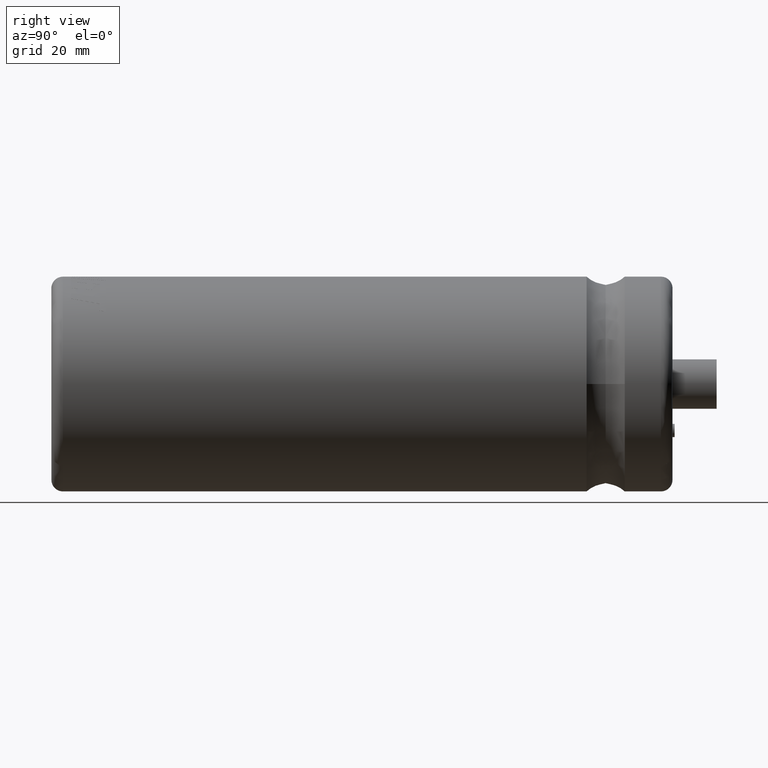
[diagram: clean part render]
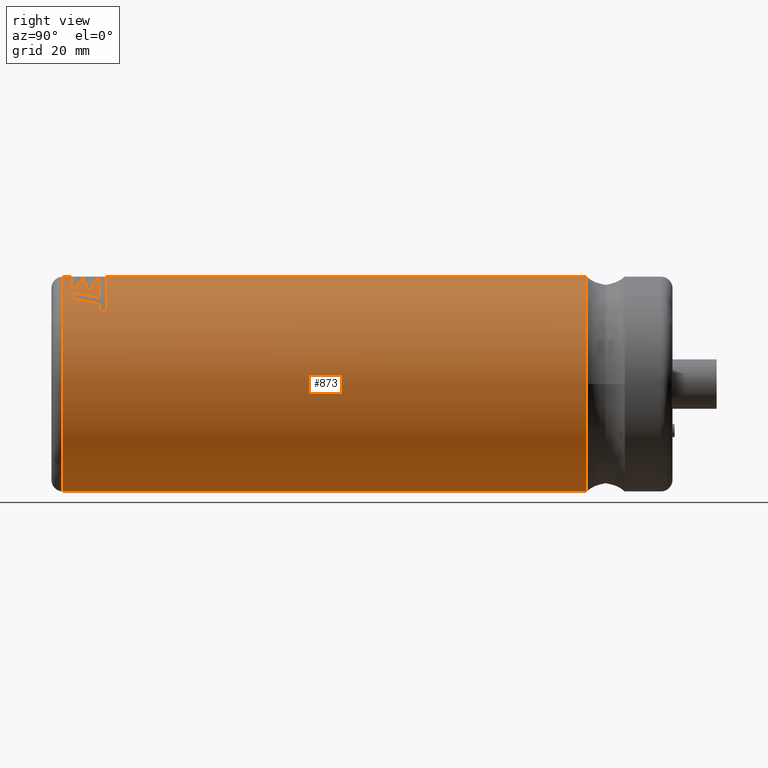
[diagram: same view with one face highlighted and labeled with its STEP entity id]
A machine part, right view. The second image highlights one B-rep face of the part: STEP entity #873.
In plain terms, the highlighted cylindrical surface (partial cylindrical patch) has radius 18.5 mm, axis along (-0, -1, -0).
Its self-contained STEP definition (entity closure, byte-faithful):
#26 = ORIENTED_EDGE ( 'NONE', *, *, #3286, .F. ) ;
#31 = EDGE_CURVE ( 'NONE', #1045, #486, #2114, .T. ) ;
#41 = CARTESIAN_POINT ( 'NONE',  ( 6.642908973838218300, 7.188493659439910000, 17.26620283575110900 ) ) ;
#52 = CARTESIAN_POINT ( 'NONE',  ( 2.265596578422603400E-015, 107.0000000000000000, 18.50000000000000000 ) ) ;
#71 = EDGE_CURVE ( 'NONE', #2595, #3135, #2828, .T. ) ;
#77 = ORIENTED_EDGE ( 'NONE', *, *, #4178, .F. ) ;
#82 = ORIENTED_EDGE ( 'NONE', *, *, #3617, .F. ) ;
#86 = EDGE_CURVE ( 'NONE', #3030, #2520, #1499, .T. ) ;
#91 = DIRECTION ( 'NONE',  ( -0.0000000000000000000, -1.000000000000000000, -0.0000000000000000000 ) ) ;
#97 = CARTESIAN_POINT ( 'NONE',  ( 5.093318656815754700, 7.448847891787712800, 17.79450498151392100 ) ) ;
#190 = CARTESIAN_POINT ( 'NONE',  ( 13.56254993944359900, 8.686349197350265800, 12.58251793018751400 ) ) ;
#193 = EDGE_CURVE ( 'NONE', #981, #320, #523, .T. ) ;
#203 = CARTESIAN_POINT ( 'NONE',  ( 8.264186464749878200, 3.416545826402384000, 16.55153231806182000 ) ) ;
#215 = CARTESIAN_POINT ( 'NONE',  ( 9.428821525695175500, 8.305707318086968300, 15.91688803241975400 ) ) ;
#237 = EDGE_LOOP ( 'NONE', ( #2224, #2379, #4119, #82, #755, #4237, #2178, #3347, #1982, #463, #4055, #3331, #3498, #1478, #2546 ) ) ;
#274 = EDGE_LOOP ( 'NONE', ( #3549, #2434, #849, #2321, #4102, #343, #26, #326, #2724, #2745, #3765, #3849, #77, #1251, #1781, #3605, #2445, #2279 ) ) ;
#290 = B_SPLINE_CURVE_WITH_KNOTS ( 'NONE', 3,
 ( #2896, #1942, #1131, #3400 ),
 .UNSPECIFIED., .F., .F.,
 ( 4, 4 ),
 ( 0.0000000000000000000, 1.000000000000000000 ),
 .UNSPECIFIED. ) ;
#302 = CIRCLE ( 'NONE', #1219, 18.50000000000000000 ) ;
#315 = B_SPLINE_CURVE_WITH_KNOTS ( 'NONE', 3,
 ( #2270, #1651, #977, #2924 ),
 .UNSPECIFIED., .F., .F.,
 ( 4, 4 ),
 ( 0.0000000000000000000, 1.000000000000000000 ),
 .UNSPECIFIED. ) ;
#320 = VERTEX_POINT ( 'NONE', #1567 ) ;
#326 = ORIENTED_EDGE ( 'NONE', *, *, #3949, .T. ) ;
#329 = EDGE_CURVE ( 'NONE', #486, #1411, #3685, .T. ) ;
#343 = ORIENTED_EDGE ( 'NONE', *, *, #3138, .F. ) ;
#358 = CARTESIAN_POINT ( 'NONE',  ( 13.48595942830609600, 8.297024056410556600, 12.66407905447853100 ) ) ;
#363 = EDGE_CURVE ( 'NONE', #2677, #2097, #1881, .T. ) ;
#414 = VERTEX_POINT ( 'NONE', #670 ) ;
#463 = ORIENTED_EDGE ( 'NONE', *, *, #3781, .F. ) ;
#486 = VERTEX_POINT ( 'NONE', #2935 ) ;
#523 = B_SPLINE_CURVE_WITH_KNOTS ( 'NONE', 3,
 ( #215, #2801, #2500, #3761 ),
 .UNSPECIFIED., .F., .F.,
 ( 4, 4 ),
 ( 0.0000000000000000000, 1.000000000000000000 ),
 .UNSPECIFIED. ) ;
#525 = CARTESIAN_POINT ( 'NONE',  ( 2.349229893947955900, 9.464999478932936600, 18.35023484605527600 ) ) ;
#541 = AXIS2_PLACEMENT_3D ( 'NONE', #1797, #2116, #1438 ) ;
#601 = B_SPLINE_CURVE_WITH_KNOTS ( 'NONE', 3,
 ( #2486, #4100, #3464, #3763 ),
 .UNSPECIFIED., .F., .F.,
 ( 4, 4 ),
 ( 0.0000000000000000000, 1.000000000000000000 ),
 .UNSPECIFIED. ) ;
#608 = AXIS2_PLACEMENT_3D ( 'NONE', #4105, #4121, #3793 ) ;
#611 = CIRCLE ( 'NONE', #1068, 18.50000000000000000 ) ;
#633 = CARTESIAN_POINT ( 'NONE',  ( 0.0000000000000000000, 107.0000000000000000, -18.50000000000000000 ) ) ;
#636 = EDGE_CURVE ( 'NONE', #3500, #895, #2309, .T. ) ;
#650 = VERTEX_POINT ( 'NONE', #3383 ) ;
#664 = EDGE_CURVE ( 'NONE', #414, #2677, #2733, .T. ) ;
#670 = CARTESIAN_POINT ( 'NONE',  ( 11.21765577625601500, 3.416545826402384000, 14.71102304006862800 ) ) ;
#679 = CARTESIAN_POINT ( 'NONE',  ( 2.349229893947955900, 9.464999478932936600, 18.35023484605527600 ) ) ;
#694 = VERTEX_POINT ( 'NONE', #525 ) ;
#738 = CARTESIAN_POINT ( 'NONE',  ( 0.4450323971191124700, 9.464999478932936600, 18.49464641904554800 ) ) ;
#746 = CARTESIAN_POINT ( 'NONE',  ( 0.2124644276210779500, 5.143906476470602800, 18.49877992914655800 ) ) ;
#747 = DIRECTION ( 'NONE',  ( -0.0000000000000000000, -1.000000000000000000, -0.0000000000000000000 ) ) ;
#755 = ORIENTED_EDGE ( 'NONE', *, *, #2506, .F. ) ;
#765 = EDGE_CURVE ( 'NONE', #650, #3357, #1323, .T. ) ;
#777 = CARTESIAN_POINT ( 'NONE',  ( 6.642908973838218300, 7.188493659439910000, 17.26620283575110900 ) ) ;
#806 = AXIS2_PLACEMENT_3D ( 'NONE', #1718, #2642, #3293 ) ;
#817 = CARTESIAN_POINT ( 'NONE',  ( 2.331809711725460600, 7.023679391972404300, 18.37713762924340000 ) ) ;
#821 = CARTESIAN_POINT ( 'NONE',  ( 12.29986521933000900, 8.297155524575883200, 13.81894770184459300 ) ) ;
#829 = CIRCLE ( 'NONE', #2205, 18.50000000000000000 ) ;
#840 = CARTESIAN_POINT ( 'NONE',  ( 2.448739033994446700E-016, 92.19120000000002300, 0.0000000000000000000 ) ) ;
#849 = ORIENTED_EDGE ( 'NONE', *, *, #193, .F. ) ;
#873 = ADVANCED_FACE ( 'NONE', ( #2917, #2602 ), #2707, .T. ) ;
#875 = DIRECTION ( 'NONE',  ( -0.0000000000000000000, -1.000000000000000000, -0.0000000000000000000 ) ) ;
#895 = VERTEX_POINT ( 'NONE', #3528 ) ;
#897 = VERTEX_POINT ( 'NONE', #3852 ) ;
#912 = B_SPLINE_CURVE_WITH_KNOTS ( 'NONE', 3,
 ( #1434, #3444, #3737, #2128 ),
 .UNSPECIFIED., .F., .F.,
 ( 4, 4 ),
 ( 0.0000000000000000000, 1.000000000000000000 ),
 .UNSPECIFIED. ) ;
#924 = CARTESIAN_POINT ( 'NONE',  ( 13.71349870212415900, 9.464999478932950800, 12.41732472583523300 ) ) ;
#940 = CARTESIAN_POINT ( 'NONE',  ( 3.268943527968920700, 8.827256375600653000, 18.20889914879397900 ) ) ;
#949 = VERTEX_POINT ( 'NONE', #2675 ) ;
#964 = EDGE_CURVE ( 'NONE', #4081, #3500, #3155, .T. ) ;
#977 = CARTESIAN_POINT ( 'NONE',  ( 2.245545814001399100, 5.220116219276920200, 18.37051364121722200 ) ) ;
#981 = VERTEX_POINT ( 'NONE', #3984 ) ;
#1004 = CARTESIAN_POINT ( 'NONE',  ( 0.2124644276210779500, 5.143906476470602800, 18.49877992914655800 ) ) ;
#1005 = CIRCLE ( 'NONE', #1406, 18.49999999999999600 ) ;
#1021 = CARTESIAN_POINT ( 'NONE',  ( 0.4450323971191124700, 9.464999478932936600, 18.49464641904554800 ) ) ;
#1028 = CARTESIAN_POINT ( 'NONE',  ( 0.9267916661902549900, 6.584272376631336200, 18.49057565143429500 ) ) ;
#1029 = CARTESIAN_POINT ( 'NONE',  ( 3.966307759882792700, 3.416545826402384000, 18.06982021919126800 ) ) ;
#1035 = CARTESIAN_POINT ( 'NONE',  ( 0.0000000000000000000, 3.416545826402370300, 0.0000000000000000000 ) ) ;
#1045 = VERTEX_POINT ( 'NONE', #3408 ) ;
#1053 = EDGE_CURVE ( 'NONE', #1791, #4081, #1005, .T. ) ;
#1061 = EDGE_CURVE ( 'NONE', #4190, #895, #2556, .T. ) ;
#1067 = CARTESIAN_POINT ( 'NONE',  ( 6.209842713198642400, 5.569525739501413500, 17.42722903377453400 ) ) ;
#1068 = AXIS2_PLACEMENT_3D ( 'NONE', #2198, #2548, #1574 ) ;
#1129 = CARTESIAN_POINT ( 'NONE',  ( 6.947379894471674300, 8.313505082480674000, 17.14595907500920900 ) ) ;
#1131 = CARTESIAN_POINT ( 'NONE',  ( 8.633900912638969400, 8.308306611759327600, 16.38778187626265000 ) ) ;
#1159 = CARTESIAN_POINT ( 'NONE',  ( 0.0000000000000000000, 3.416545826402384000, 0.0000000000000000000 ) ) ;
#1166 = DIRECTION ( 'NONE',  ( 0.0000000000000000000, 1.000000000000000000, 0.0000000000000000000 ) ) ;
#1182 = VERTEX_POINT ( 'NONE', #2614 ) ;
#1212 = DIRECTION ( 'NONE',  ( 1.000000000000000000, 0.0000000000000000000, 0.0000000000000000000 ) ) ;
#1217 = DIRECTION ( 'NONE',  ( -0.0000000000000000000, -1.000000000000000000, -0.0000000000000000000 ) ) ;
#1219 = AXIS2_PLACEMENT_3D ( 'NONE', #2457, #2148, #1540 ) ;
#1236 = EDGE_CURVE ( 'NONE', #1646, #2618, #2704, .T. ) ;
#1251 = ORIENTED_EDGE ( 'NONE', *, *, #3626, .F. ) ;
#1281 = CARTESIAN_POINT ( 'NONE',  ( 2.265596578422603400E-015, 92.19120000000002300, 18.49999999999999600 ) ) ;
#1282 = B_SPLINE_CURVE_WITH_KNOTS ( 'NONE', 3,
 ( #3629, #2668, #1067, #4015 ),
 .UNSPECIFIED., .F., .F.,
 ( 4, 4 ),
 ( 0.0000000000000000000, 1.000000000000000000 ),
 .UNSPECIFIED. ) ;
#1301 = CARTESIAN_POINT ( 'NONE',  ( 3.823063599323596900, 5.432697412589837100, 18.10994722882333000 ) ) ;
#1317 = CARTESIAN_POINT ( 'NONE',  ( 18.49999999999999600, 92.19120000000002300, 0.0000000000000000000 ) ) ;
#1323 = CIRCLE ( 'NONE', #608, 18.50000000000000000 ) ;
#1336 = VERTEX_POINT ( 'NONE', #3740 ) ;
#1363 = CARTESIAN_POINT ( 'NONE',  ( 0.0000000000000000000, 9.464999478932936600, 0.0000000000000000000 ) ) ;
#1386 = DIRECTION ( 'NONE',  ( -0.0000000000000000000, -1.000000000000000000, -0.0000000000000000000 ) ) ;
#1406 = AXIS2_PLACEMENT_3D ( 'NONE', #840, #2852, #1212 ) ;
#1407 = EDGE_CURVE ( 'NONE', #414, #2034, #2281, .T. ) ;
#1411 = VERTEX_POINT ( 'NONE', #2485 ) ;
#1421 = DIRECTION ( 'NONE',  ( -0.0000000000000000000, -1.000000000000000000, -0.0000000000000000000 ) ) ;
#1426 = CARTESIAN_POINT ( 'NONE',  ( 1.381682008514034700, 5.220122810030616700, 18.47288496156459900 ) ) ;
#1434 = CARTESIAN_POINT ( 'NONE',  ( 8.264186464749878200, 3.416545826402384000, 16.55153231806182000 ) ) ;
#1438 = DIRECTION ( 'NONE',  ( 0.2143950140477185200, 0.0000000000000000000, 0.9767470388752036400 ) ) ;
#1476 = CIRCLE ( 'NONE', #3415, 18.50000000000000000 ) ;
#1478 = ORIENTED_EDGE ( 'NONE', *, *, #1633, .F. ) ;
#1487 = DIRECTION ( 'NONE',  ( 0.5297798474804629200, 0.0000000000000000000, 0.8481351974794924000 ) ) ;
#1492 = CARTESIAN_POINT ( 'NONE',  ( 9.714178162388904500, 9.464999478932950800, 15.74435589757061000 ) ) ;
#1493 = CARTESIAN_POINT ( 'NONE',  ( 11.95057568479881000, 6.670285499197266400, 14.12984070831301000 ) ) ;
#1499 = CIRCLE ( 'NONE', #3167, 18.50000000000000000 ) ;
#1504 = CARTESIAN_POINT ( 'NONE',  ( 13.48595942830609600, 8.297024056410556600, 12.66407905447853100 ) ) ;
#1540 = DIRECTION ( 'NONE',  ( 0.5250907114804812500, 0.0000000000000000000, 0.8510462647335467200 ) ) ;
#1546 = CARTESIAN_POINT ( 'NONE',  ( 10.58494358374994500, 6.670285498994769700, 15.17984693985343400 ) ) ;
#1567 = CARTESIAN_POINT ( 'NONE',  ( 10.96173474450690000, 8.297155524590884600, 14.90269678249779700 ) ) ;
#1573 = DIRECTION ( 'NONE',  ( -0.0000000000000000000, -1.000000000000000000, -0.0000000000000000000 ) ) ;
#1574 = DIRECTION ( 'NONE',  ( 0.1269853996728622600, 0.0000000000000000000, 0.9919045862732581700 ) ) ;
#1633 = EDGE_CURVE ( 'NONE', #1791, #1182, #3847, .T. ) ;
#1646 = VERTEX_POINT ( 'NONE', #41 ) ;
#1651 = CARTESIAN_POINT ( 'NONE',  ( 2.759167089100059000, 7.023685982726100000, 18.30041650945011300 ) ) ;
#1718 = CARTESIAN_POINT ( 'NONE',  ( 0.0000000000000000000, 7.188493659439910000, 0.0000000000000000000 ) ) ;
#1736 = CIRCLE ( 'NONE', #2793, 18.50000000000000000 ) ;
#1759 = CARTESIAN_POINT ( 'NONE',  ( 5.645572098296751700, 9.464999478932950800, 17.61753432472697500 ) ) ;
#1781 = ORIENTED_EDGE ( 'NONE', *, *, #3341, .F. ) ;
#1791 = VERTEX_POINT ( 'NONE', #3747 ) ;
#1797 = CARTESIAN_POINT ( 'NONE',  ( 0.0000000000000000000, 3.416545826402384000, 0.0000000000000000000 ) ) ;
#1818 = CARTESIAN_POINT ( 'NONE',  ( 13.71349870212415900, 9.464999478932950800, 12.41732472583523300 ) ) ;
#1838 = EDGE_CURVE ( 'NONE', #2595, #650, #912, .T. ) ;
#1851 = B_SPLINE_CURVE_WITH_KNOTS ( 'NONE', 3,
 ( #1759, #97, #3011, #1029 ),
 .UNSPECIFIED., .F., .F.,
 ( 4, 4 ),
 ( 0.0000000000000000000, 1.000000000000000000 ),
 .UNSPECIFIED. ) ;
#1879 = VERTEX_POINT ( 'NONE', #2140 ) ;
#1881 = B_SPLINE_CURVE_WITH_KNOTS ( 'NONE', 3,
 ( #3939, #3268, #3604, #358 ),
 .UNSPECIFIED., .F., .F.,
 ( 4, 4 ),
 ( 0.0000000000000000000, 1.000000000000000000 ),
 .UNSPECIFIED. ) ;
#1889 = EDGE_CURVE ( 'NONE', #1411, #1182, #829, .T. ) ;
#1924 = VERTEX_POINT ( 'NONE', #924 ) ;
#1937 = CARTESIAN_POINT ( 'NONE',  ( 3.252433556034344700, 3.416545826402384000, 18.21185536851151500 ) ) ;
#1942 = CARTESIAN_POINT ( 'NONE',  ( 7.803682726506505000, 8.310905788808302200, 16.79899329416065600 ) ) ;
#1963 = EDGE_CURVE ( 'NONE', #2618, #981, #290, .T. ) ;
#1982 = ORIENTED_EDGE ( 'NONE', *, *, #3032, .F. ) ;
#2012 = CARTESIAN_POINT ( 'NONE',  ( 2.448739033994446700E-016, 92.19120000000002300, 0.0000000000000000000 ) ) ;
#2022 = VERTEX_POINT ( 'NONE', #1492 ) ;
#2034 = VERTEX_POINT ( 'NONE', #3214 ) ;
#2050 = DIRECTION ( 'NONE',  ( 1.000000000000000000, 0.0000000000000000000, 0.0000000000000000000 ) ) ;
#2064 = CARTESIAN_POINT ( 'NONE',  ( 0.3675194238904064800, 8.024635144775635000, 18.49651159578384400 ) ) ;
#2076 = CARTESIAN_POINT ( 'NONE',  ( 0.0000000000000000000, 9.464999478932950800, 0.0000000000000000000 ) ) ;
#2097 = VERTEX_POINT ( 'NONE', #2985 ) ;
#2114 = CIRCLE ( 'NONE', #3770, 18.49999999999999600 ) ;
#2116 = DIRECTION ( 'NONE',  ( -0.0000000000000000000, -1.000000000000000000, -0.0000000000000000000 ) ) ;
#2128 = CARTESIAN_POINT ( 'NONE',  ( 8.555073215558289600, 4.567488494231164400, 16.40307051367020800 ) ) ;
#2140 = CARTESIAN_POINT ( 'NONE',  ( 8.992243389938009200, 7.188493659439910000, 16.16754646865492600 ) ) ;
#2148 = DIRECTION ( 'NONE',  ( -0.0000000000000000000, -1.000000000000000000, -0.0000000000000000000 ) ) ;
#2178 = ORIENTED_EDGE ( 'NONE', *, *, #2395, .F. ) ;
#2179 = CARTESIAN_POINT ( 'NONE',  ( 11.58949352403600100, 5.043415851780992800, 14.42748410142016300 ) ) ;
#2183 = EDGE_CURVE ( 'NONE', #320, #2034, #2341, .T. ) ;
#2198 = CARTESIAN_POINT ( 'NONE',  ( 0.0000000000000000000, 9.464999478932936600, 0.0000000000000000000 ) ) ;
#2204 = AXIS2_PLACEMENT_3D ( 'NONE', #1159, #875, #1487 ) ;
#2205 = AXIS2_PLACEMENT_3D ( 'NONE', #3783, #1166, #2274 ) ;
#2215 = CARTESIAN_POINT ( 'NONE',  ( 0.0000000000000000000, 6.070544362640109900, 0.0000000000000000000 ) ) ;
#2224 = ORIENTED_EDGE ( 'NONE', *, *, #964, .T. ) ;
#2270 = CARTESIAN_POINT ( 'NONE',  ( 3.268943527968920700, 8.827256375600653000, 18.20889914879397900 ) ) ;
#2274 = DIRECTION ( 'NONE',  ( 0.0000000000000000000, 0.0000000000000000000, 1.000000000000000000 ) ) ;
#2278 = DIRECTION ( 'NONE',  ( -0.0000000000000000000, -1.000000000000000000, -0.0000000000000000000 ) ) ;
#2279 = ORIENTED_EDGE ( 'NONE', *, *, #664, .F. ) ;
#2281 = CIRCLE ( 'NONE', #2204, 18.49999999999999600 ) ;
#2299 = VERTEX_POINT ( 'NONE', #940 ) ;
#2309 = LINE ( 'NONE', #52, #3625 ) ;
#2313 = CARTESIAN_POINT ( 'NONE',  ( 4.388899453175394400, 7.448847892745491500, 17.98120033549361100 ) ) ;
#2317 = AXIS2_PLACEMENT_3D ( 'NONE', #3516, #1573, #4181 ) ;
#2321 = ORIENTED_EDGE ( 'NONE', *, *, #1963, .F. ) ;
#2341 = B_SPLINE_CURVE_WITH_KNOTS ( 'NONE', 3,
 ( #3519, #1546, #3169, #2536 ),
 .UNSPECIFIED., .F., .F.,
 ( 4, 4 ),
 ( 0.0000000000000000000, 1.000000000000000000 ),
 .UNSPECIFIED. ) ;
#2344 = AXIS2_PLACEMENT_3D ( 'NONE', #2012, #2346, #2050 ) ;
#2346 = DIRECTION ( 'NONE',  ( -2.656152684848929400E-018, -1.000000000000000000, -0.0000000000000000000 ) ) ;
#2379 = ORIENTED_EDGE ( 'NONE', *, *, #636, .T. ) ;
#2395 = EDGE_CURVE ( 'NONE', #3030, #3385, #3163, .T. ) ;
#2434 = ORIENTED_EDGE ( 'NONE', *, *, #2183, .F. ) ;
#2445 = ORIENTED_EDGE ( 'NONE', *, *, #363, .F. ) ;
#2455 = CARTESIAN_POINT ( 'NONE',  ( 6.846246856260068900, 7.938501274712248100, 17.18693722229536600 ) ) ;
#2457 = CARTESIAN_POINT ( 'NONE',  ( 0.0000000000000000000, 9.464999478932950800, 0.0000000000000000000 ) ) ;
#2475 = CARTESIAN_POINT ( 'NONE',  ( 12.29986521933000900, 8.297155524575883200, 13.81894770184459300 ) ) ;
#2485 = CARTESIAN_POINT ( 'NONE',  ( 0.0000000000000000000, 2.000000000000001800, 18.50000000000000400 ) ) ;
#2486 = CARTESIAN_POINT ( 'NONE',  ( 8.711806624040868000, 6.070544362640109900, 16.32036841941129900 ) ) ;
#2500 = CARTESIAN_POINT ( 'NONE',  ( 10.46798381731099200, 8.300006130840861500, 15.26587713654836900 ) ) ;
#2506 = EDGE_CURVE ( 'NONE', #694, #4113, #2648, .T. ) ;
#2520 = VERTEX_POINT ( 'NONE', #3963 ) ;
#2536 = CARTESIAN_POINT ( 'NONE',  ( 9.800927178388562300, 3.416545826402384000, 15.69050115337060600 ) ) ;
#2546 = ORIENTED_EDGE ( 'NONE', *, *, #1053, .T. ) ;
#2548 = DIRECTION ( 'NONE',  ( -0.0000000000000000000, -1.000000000000000000, -0.0000000000000000000 ) ) ;
#2552 = DIRECTION ( 'NONE',  ( 0.3429298346774529200, 0.0000000000000000000, 0.9393610213800095400 ) ) ;
#2556 = CIRCLE ( 'NONE', #3210, 18.49999999999999600 ) ;
#2595 = VERTEX_POINT ( 'NONE', #203 ) ;
#2602 = FACE_OUTER_BOUND ( 'NONE', #237, .T. ) ;
#2614 = CARTESIAN_POINT ( 'NONE',  ( 2.265596578422603800E-015, 2.000000000000001800, -18.50000000000000400 ) ) ;
#2618 = VERTEX_POINT ( 'NONE', #1129 ) ;
#2620 = CARTESIAN_POINT ( 'NONE',  ( 0.2124644276210779500, 5.143906476470602800, 18.49877992914655800 ) ) ;
#2630 = VECTOR ( 'NONE', #3954, 1000.000000000000000 ) ;
#2638 = EDGE_CURVE ( 'NONE', #2097, #1924, #3845, .T. ) ;
#2642 = DIRECTION ( 'NONE',  ( -0.0000000000000000000, -1.000000000000000000, -0.0000000000000000000 ) ) ;
#2648 = B_SPLINE_CURVE_WITH_KNOTS ( 'NONE', 3,
 ( #679, #3280, #1028, #1004 ),
 .UNSPECIFIED., .F., .F.,
 ( 4, 4 ),
 ( 0.0000000000000000000, 1.000000000000000000 ),
 .UNSPECIFIED. ) ;
#2663 = CARTESIAN_POINT ( 'NONE',  ( 0.2899947248175178700, 6.584270810627916900, 18.49788946878754100 ) ) ;
#2668 = CARTESIAN_POINT ( 'NONE',  ( 6.074914614252242600, 5.068507117369859000, 17.47472090615025300 ) ) ;
#2675 = CARTESIAN_POINT ( 'NONE',  ( 8.711806624040868000, 6.070544362640109900, 16.32036841941129900 ) ) ;
#2677 = VERTEX_POINT ( 'NONE', #821 ) ;
#2704 = B_SPLINE_CURVE_WITH_KNOTS ( 'NONE', 3,
 ( #777, #4070, #2455, #4028 ),
 .UNSPECIFIED., .F., .F.,
 ( 4, 4 ),
 ( 0.0000000000000000000, 1.000000000000000000 ),
 .UNSPECIFIED. ) ;
#2707 = CYLINDRICAL_SURFACE ( 'NONE', #2317, 18.50000000000000000 ) ;
#2722 = DIRECTION ( 'NONE',  ( 0.09350751183368216600, 0.0000000000000000000, 0.9956185741691814300 ) ) ;
#2724 = ORIENTED_EDGE ( 'NONE', *, *, #3147, .F. ) ;
#2733 = B_SPLINE_CURVE_WITH_KNOTS ( 'NONE', 3,
 ( #3768, #2179, #1493, #2475 ),
 .UNSPECIFIED., .F., .F.,
 ( 4, 4 ),
 ( 0.0000000000000000000, 1.000000000000000000 ),
 .UNSPECIFIED. ) ;
#2745 = ORIENTED_EDGE ( 'NONE', *, *, #765, .F. ) ;
#2793 = AXIS2_PLACEMENT_3D ( 'NONE', #2215, #3838, #2552 ) ;
#2801 = CARTESIAN_POINT ( 'NONE',  ( 9.956174281963452400, 8.302856711836993100, 15.60449562193038500 ) ) ;
#2820 = CARTESIAN_POINT ( 'NONE',  ( 13.63840052533444300, 9.075674337993247000, 12.50026197461273500 ) ) ;
#2828 = CIRCLE ( 'NONE', #541, 18.50000000000000000 ) ;
#2837 = EDGE_CURVE ( 'NONE', #3385, #694, #611, .T. ) ;
#2852 = DIRECTION ( 'NONE',  ( -2.656152684848929400E-018, -1.000000000000000000, -0.0000000000000000000 ) ) ;
#2894 = CARTESIAN_POINT ( 'NONE',  ( 3.252433556034344700, 3.416545826402384000, 18.21185536851151500 ) ) ;
#2896 = CARTESIAN_POINT ( 'NONE',  ( 6.947379894471674300, 8.313505082480674000, 17.14595907500920900 ) ) ;
#2917 = FACE_BOUND ( 'NONE', #274, .T. ) ;
#2924 = CARTESIAN_POINT ( 'NONE',  ( 1.729888968923120100, 3.416545826402370300, 18.41894362212985600 ) ) ;
#2935 = CARTESIAN_POINT ( 'NONE',  ( 2.265596578422603400E-015, 3.416545826402370300, 18.50000000000000000 ) ) ;
#2944 = DIRECTION ( 'NONE',  ( -0.1149210458646823100, 0.0000000000000000000, 0.9933746288371612100 ) ) ;
#2962 = CARTESIAN_POINT ( 'NONE',  ( 4.947445253854747100, 9.464999478932950800, 17.82618258237332400 ) ) ;
#2985 = CARTESIAN_POINT ( 'NONE',  ( 13.48595942830609600, 8.297024056410556600, 12.66407905447853100 ) ) ;
#3011 = CARTESIAN_POINT ( 'NONE',  ( 4.532738919831503600, 5.432697413547616700, 17.94548913687325300 ) ) ;
#3030 = VERTEX_POINT ( 'NONE', #1937 ) ;
#3032 = EDGE_CURVE ( 'NONE', #2299, #2520, #315, .T. ) ;
#3135 = VERTEX_POINT ( 'NONE', #3948 ) ;
#3138 = EDGE_CURVE ( 'NONE', #1879, #1646, #3424, .T. ) ;
#3147 = EDGE_CURVE ( 'NONE', #3357, #897, #1282, .T. ) ;
#3155 = CIRCLE ( 'NONE', #2344, 18.49999999999999600 ) ;
#3163 = B_SPLINE_CURVE_WITH_KNOTS ( 'NONE', 3,
 ( #2894, #1301, #2313, #2962 ),
 .UNSPECIFIED., .F., .F.,
 ( 4, 4 ),
 ( 0.0000000000000000000, 1.000000000000000000 ),
 .UNSPECIFIED. ) ;
#3167 = AXIS2_PLACEMENT_3D ( 'NONE', #3410, #747, #2722 ) ;
#3169 = CARTESIAN_POINT ( 'NONE',  ( 10.19763672892978500, 5.043415851998484600, 15.44270018271833700 ) ) ;
#3210 = AXIS2_PLACEMENT_3D ( 'NONE', #1363, #2278, #2944 ) ;
#3214 = CARTESIAN_POINT ( 'NONE',  ( 9.800927178388562300, 3.416545826402384000, 15.69050115337060600 ) ) ;
#3268 = CARTESIAN_POINT ( 'NONE',  ( 12.71219623036760100, 8.297111701768731300, 13.45194321127578800 ) ) ;
#3280 = CARTESIAN_POINT ( 'NONE',  ( 1.640638698480764600, 8.024633578772213800, 18.44094995858353100 ) ) ;
#3286 = EDGE_CURVE ( 'NONE', #949, #1879, #601, .T. ) ;
#3293 = DIRECTION ( 'NONE',  ( 0.3590761607480120200, 0.0000000000000000000, 0.9333082613919518900 ) ) ;
#3331 = ORIENTED_EDGE ( 'NONE', *, *, #329, .T. ) ;
#3341 = EDGE_CURVE ( 'NONE', #1924, #2022, #302, .T. ) ;
#3347 = ORIENTED_EDGE ( 'NONE', *, *, #86, .T. ) ;
#3357 = VERTEX_POINT ( 'NONE', #3803 ) ;
#3383 = CARTESIAN_POINT ( 'NONE',  ( 8.555073215558289600, 4.567488494231164400, 16.40307051367020800 ) ) ;
#3385 = VERTEX_POINT ( 'NONE', #3863 ) ;
#3389 = DIRECTION ( 'NONE',  ( -0.06388087706772450900, 0.0000000000000000000, 0.9979575309325834400 ) ) ;
#3400 = CARTESIAN_POINT ( 'NONE',  ( 9.428821525695175500, 8.305707318086968300, 15.91688803241975400 ) ) ;
#3408 = CARTESIAN_POINT ( 'NONE',  ( 0.4298234950044006500, 3.416545826402384000, 18.49500613038942000 ) ) ;
#3410 = CARTESIAN_POINT ( 'NONE',  ( 0.0000000000000000000, 3.416545826402370300, 0.0000000000000000000 ) ) ;
#3415 = AXIS2_PLACEMENT_3D ( 'NONE', #2076, #91, #3985 ) ;
#3424 = CIRCLE ( 'NONE', #806, 18.50000000000000000 ) ;
#3444 = CARTESIAN_POINT ( 'NONE',  ( 8.361583004391581800, 3.800193382430619300, 16.50290218828573400 ) ) ;
#3464 = CARTESIAN_POINT ( 'NONE',  ( 8.899206500089070100, 6.815843893763244800, 16.21929274687879600 ) ) ;
#3498 = ORIENTED_EDGE ( 'NONE', *, *, #1889, .T. ) ;
#3500 = VERTEX_POINT ( 'NONE', #1281 ) ;
#3516 = CARTESIAN_POINT ( 'NONE',  ( 0.0000000000000000000, 107.0000000000000000, 0.0000000000000000000 ) ) ;
#3519 = CARTESIAN_POINT ( 'NONE',  ( 10.96173474450690000, 8.297155524590884600, 14.90269678249779700 ) ) ;
#3528 = CARTESIAN_POINT ( 'NONE',  ( 2.265596578422603400E-015, 9.464999478932936600, 18.50000000000000000 ) ) ;
#3530 = VECTOR ( 'NONE', #1217, 1000.000000000000000 ) ;
#3549 = ORIENTED_EDGE ( 'NONE', *, *, #1407, .T. ) ;
#3604 = CARTESIAN_POINT ( 'NONE',  ( 13.10808749239189600, 8.297067879217708600, 13.06647433130146400 ) ) ;
#3605 = ORIENTED_EDGE ( 'NONE', *, *, #2638, .F. ) ;
#3617 = EDGE_CURVE ( 'NONE', #4113, #4190, #3816, .T. ) ;
#3625 = VECTOR ( 'NONE', #1421, 1000.000000000000000 ) ;
#3626 = EDGE_CURVE ( 'NONE', #2022, #1336, #1476, .T. ) ;
#3629 = CARTESIAN_POINT ( 'NONE',  ( 5.939453935770435700, 4.567488494231164400, 17.52064173895639600 ) ) ;
#3685 = LINE ( 'NONE', #3879, #3530 ) ;
#3712 = CARTESIAN_POINT ( 'NONE',  ( 3.268943527968920700, 8.827256375600653000, 18.20889914879397900 ) ) ;
#3737 = CARTESIAN_POINT ( 'NONE',  ( 8.458550290862847400, 4.183840938202930500, 16.45341234979541400 ) ) ;
#3740 = CARTESIAN_POINT ( 'NONE',  ( 5.645572098296751700, 9.464999478932950800, 17.61753432472697500 ) ) ;
#3747 = CARTESIAN_POINT ( 'NONE',  ( 0.0000000000000000000, 92.19120000000002300, -18.49999999999999600 ) ) ;
#3761 = CARTESIAN_POINT ( 'NONE',  ( 10.96173474450690000, 8.297155524590884600, 14.90269678249779700 ) ) ;
#3763 = CARTESIAN_POINT ( 'NONE',  ( 8.992243389938009200, 7.188493659439910000, 16.16754646865492600 ) ) ;
#3765 = ORIENTED_EDGE ( 'NONE', *, *, #1838, .F. ) ;
#3768 = CARTESIAN_POINT ( 'NONE',  ( 11.21765577625601500, 3.416545826402384000, 14.71102304006862800 ) ) ;
#3770 = AXIS2_PLACEMENT_3D ( 'NONE', #1035, #1386, #3389 ) ;
#3781 = EDGE_CURVE ( 'NONE', #1045, #2299, #4219, .T. ) ;
#3783 = CARTESIAN_POINT ( 'NONE',  ( 0.0000000000000000000, 2.000000000000001800, 0.0000000000000000000 ) ) ;
#3793 = DIRECTION ( 'NONE',  ( 0.3210515640956994000, 0.0000000000000000000, 0.9470617156192646700 ) ) ;
#3803 = CARTESIAN_POINT ( 'NONE',  ( 5.939453935770435700, 4.567488494231164400, 17.52064173895639600 ) ) ;
#3816 = B_SPLINE_CURVE_WITH_KNOTS ( 'NONE', 3,
 ( #746, #2663, #2064, #1021 ),
 .UNSPECIFIED., .F., .F.,
 ( 4, 4 ),
 ( 0.0000000000000000000, 1.000000000000000000 ),
 .UNSPECIFIED. ) ;
#3838 = DIRECTION ( 'NONE',  ( -0.0000000000000000000, -1.000000000000000000, -0.0000000000000000000 ) ) ;
#3845 = B_SPLINE_CURVE_WITH_KNOTS ( 'NONE', 3,
 ( #1504, #190, #2820, #1818 ),
 .UNSPECIFIED., .F., .F.,
 ( 4, 4 ),
 ( 0.0000000000000000000, 1.000000000000000000 ),
 .UNSPECIFIED. ) ;
#3847 = LINE ( 'NONE', #633, #2630 ) ;
#3849 = ORIENTED_EDGE ( 'NONE', *, *, #71, .T. ) ;
#3852 = CARTESIAN_POINT ( 'NONE',  ( 6.344201941532879200, 6.070544362640109900, 17.37817889553017600 ) ) ;
#3863 = CARTESIAN_POINT ( 'NONE',  ( 4.947445253854747100, 9.464999478932950800, 17.82618258237332400 ) ) ;
#3879 = CARTESIAN_POINT ( 'NONE',  ( 2.265596578422603400E-015, 107.0000000000000000, 18.50000000000000000 ) ) ;
#3939 = CARTESIAN_POINT ( 'NONE',  ( 12.29986521933000900, 8.297155524575883200, 13.81894770184459300 ) ) ;
#3948 = CARTESIAN_POINT ( 'NONE',  ( 3.966307759882792700, 3.416545826402384000, 18.06982021919126800 ) ) ;
#3949 = EDGE_CURVE ( 'NONE', #949, #897, #1736, .T. ) ;
#3954 = DIRECTION ( 'NONE',  ( -0.0000000000000000000, -1.000000000000000000, -0.0000000000000000000 ) ) ;
#3963 = CARTESIAN_POINT ( 'NONE',  ( 1.729888968923120100, 3.416545826402370300, 18.41894362212985600 ) ) ;
#3984 = CARTESIAN_POINT ( 'NONE',  ( 9.428821525695175500, 8.305707318086968300, 15.91688803241975400 ) ) ;
#3985 = DIRECTION ( 'NONE',  ( 0.3051660593673918300, 0.0000000000000000000, 0.9522991526879446300 ) ) ;
#4015 = CARTESIAN_POINT ( 'NONE',  ( 6.344201941532879200, 6.070544362640109900, 17.37817889553017600 ) ) ;
#4028 = CARTESIAN_POINT ( 'NONE',  ( 6.947379894471674300, 8.313505082480674000, 17.14595907500920900 ) ) ;
#4050 = CARTESIAN_POINT ( 'NONE',  ( 0.4298234950044006500, 3.416545826402384000, 18.49500613038942000 ) ) ;
#4055 = ORIENTED_EDGE ( 'NONE', *, *, #31, .T. ) ;
#4070 = CARTESIAN_POINT ( 'NONE',  ( 6.744751253031712900, 7.563497467208330600, 17.22702056754736700 ) ) ;
#4081 = VERTEX_POINT ( 'NONE', #1317 ) ;
#4100 = CARTESIAN_POINT ( 'NONE',  ( 8.805722934835129600, 6.443194128316777700, 16.27023592745665700 ) ) ;
#4102 = ORIENTED_EDGE ( 'NONE', *, *, #1236, .F. ) ;
#4105 = CARTESIAN_POINT ( 'NONE',  ( 0.0000000000000000000, 4.567488494231164400, 0.0000000000000000000 ) ) ;
#4113 = VERTEX_POINT ( 'NONE', #2620 ) ;
#4119 = ORIENTED_EDGE ( 'NONE', *, *, #1061, .F. ) ;
#4121 = DIRECTION ( 'NONE',  ( -0.0000000000000000000, -1.000000000000000000, -0.0000000000000000000 ) ) ;
#4178 = EDGE_CURVE ( 'NONE', #1336, #3135, #1851, .T. ) ;
#4181 = DIRECTION ( 'NONE',  ( 0.0000000000000000000, 0.0000000000000000000, -1.000000000000000000 ) ) ;
#4190 = VERTEX_POINT ( 'NONE', #738 ) ;
#4219 = B_SPLINE_CURVE_WITH_KNOTS ( 'NONE', 3,
 ( #4050, #1426, #817, #3712 ),
 .UNSPECIFIED., .F., .F.,
 ( 4, 4 ),
 ( 0.0000000000000000000, 1.000000000000000000 ),
 .UNSPECIFIED. ) ;
#4237 = ORIENTED_EDGE ( 'NONE', *, *, #2837, .F. ) ;